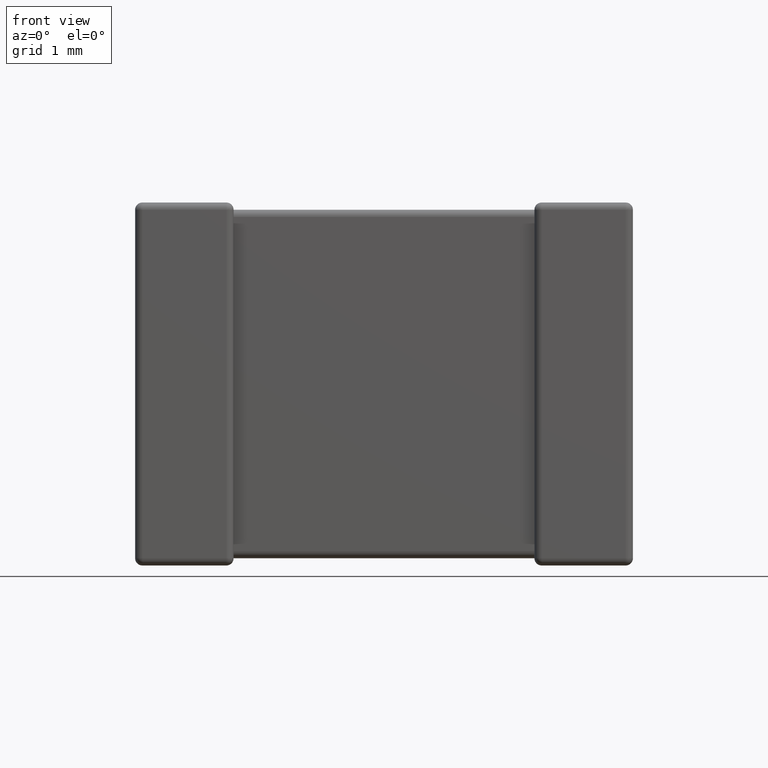
[diagram: clean part render]
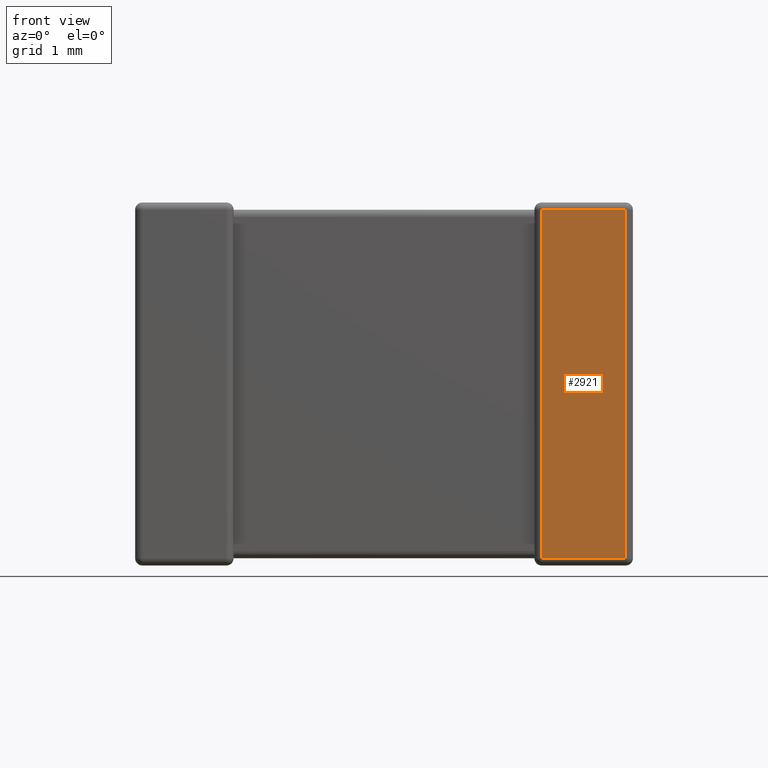
[diagram: same view with one face highlighted and labeled with its STEP entity id]
A machine part, front view. The second image highlights one B-rep face of the part: STEP entity #2921.
In plain terms, the highlighted planar face has unit normal (-0, 1, 0).
Its self-contained STEP definition (entity closure, byte-faithful):
#96 = DIRECTION ( 'NONE',  ( -0.000000000000000000, 1.000000000000000000, 0.000000000000000000 ) ) ;
#157 = ORIENTED_EDGE ( 'NONE', *, *, #3051, .T. ) ;
#413 = CARTESIAN_POINT ( 'NONE',  ( 4.729999999999999538, 0.000000000000000000, -3.429999999999999716 ) ) ;
#678 = ORIENTED_EDGE ( 'NONE', *, *, #7224, .T. ) ;
#702 = LINE ( 'NONE', #4060, #1602 ) ;
#976 = EDGE_LOOP ( 'NONE', ( #678, #3352, #2728, #157 ) ) ;
#1101 = EDGE_CURVE ( 'NONE', #5117, #1479, #2752, .T. ) ;
#1178 = CARTESIAN_POINT ( 'NONE',  ( 4.799999999999999822, 0.000000000000000000, 0.000000000000000000 ) ) ;
#1215 = DIRECTION ( 'NONE',  ( -1.000000000000000000, 0.000000000000000000, 0.000000000000000000 ) ) ;
#1310 = AXIS2_PLACEMENT_3D ( 'NONE', #1178, #96, #4621 ) ;
#1479 = VERTEX_POINT ( 'NONE', #3407 ) ;
#1602 = VECTOR ( 'NONE', #1215, 1000.000000000000000 ) ;
#1604 = LINE ( 'NONE', #5026, #6131 ) ;
#2241 = CARTESIAN_POINT ( 'NONE',  ( 4.729999999999999538, 0.000000000000000000, -0.07000000000000000666 ) ) ;
#2265 = VECTOR ( 'NONE', #4727, 1000.000000000000000 ) ;
#2435 = CARTESIAN_POINT ( 'NONE',  ( 4.729999999999999538, 0.000000000000000000, 0.000000000000000000 ) ) ;
#2656 = FACE_OUTER_BOUND ( 'NONE', #976, .T. ) ;
#2728 = ORIENTED_EDGE ( 'NONE', *, *, #5345, .T. ) ;
#2752 = LINE ( 'NONE', #3925, #3897 ) ;
#2921 = ADVANCED_FACE ( 'NONE', ( #2656 ), #6167, .F. ) ;
#3051 = EDGE_CURVE ( 'NONE', #4773, #3455, #5389, .T. ) ;
#3352 = ORIENTED_EDGE ( 'NONE', *, *, #1101, .T. ) ;
#3407 = CARTESIAN_POINT ( 'NONE',  ( 3.919999999999999929, 0.000000000000000000, -3.429999999999999716 ) ) ;
#3455 = VERTEX_POINT ( 'NONE', #2241 ) ;
#3525 = CARTESIAN_POINT ( 'NONE',  ( 3.919999999999999929, 0.000000000000000000, -0.07000000000000000666 ) ) ;
#3848 = DIRECTION ( 'NONE',  ( 0.000000000000000000, 0.000000000000000000, -1.000000000000000000 ) ) ;
#3897 = VECTOR ( 'NONE', #3848, 1000.000000000000000 ) ;
#3925 = CARTESIAN_POINT ( 'NONE',  ( 3.919999999999999929, 0.000000000000000000, 0.000000000000000000 ) ) ;
#4060 = CARTESIAN_POINT ( 'NONE',  ( 4.799999999999999822, 0.000000000000000000, -0.07000000000000000666 ) ) ;
#4621 = DIRECTION ( 'NONE',  ( 0.000000000000000000, -0.000000000000000000, 1.000000000000000000 ) ) ;
#4727 = DIRECTION ( 'NONE',  ( -0.000000000000000000, -0.000000000000000000, 1.000000000000000000 ) ) ;
#4773 = VERTEX_POINT ( 'NONE', #413 ) ;
#5026 = CARTESIAN_POINT ( 'NONE',  ( 4.799999999999999822, 0.000000000000000000, -3.429999999999999716 ) ) ;
#5117 = VERTEX_POINT ( 'NONE', #3525 ) ;
#5345 = EDGE_CURVE ( 'NONE', #1479, #4773, #1604, .T. ) ;
#5389 = LINE ( 'NONE', #2435, #2265 ) ;
#6068 = DIRECTION ( 'NONE',  ( 1.000000000000000000, 0.000000000000000000, -0.000000000000000000 ) ) ;
#6131 = VECTOR ( 'NONE', #6068, 1000.000000000000000 ) ;
#6167 = PLANE ( 'NONE',  #1310 ) ;
#7224 = EDGE_CURVE ( 'NONE', #3455, #5117, #702, .T. ) ;